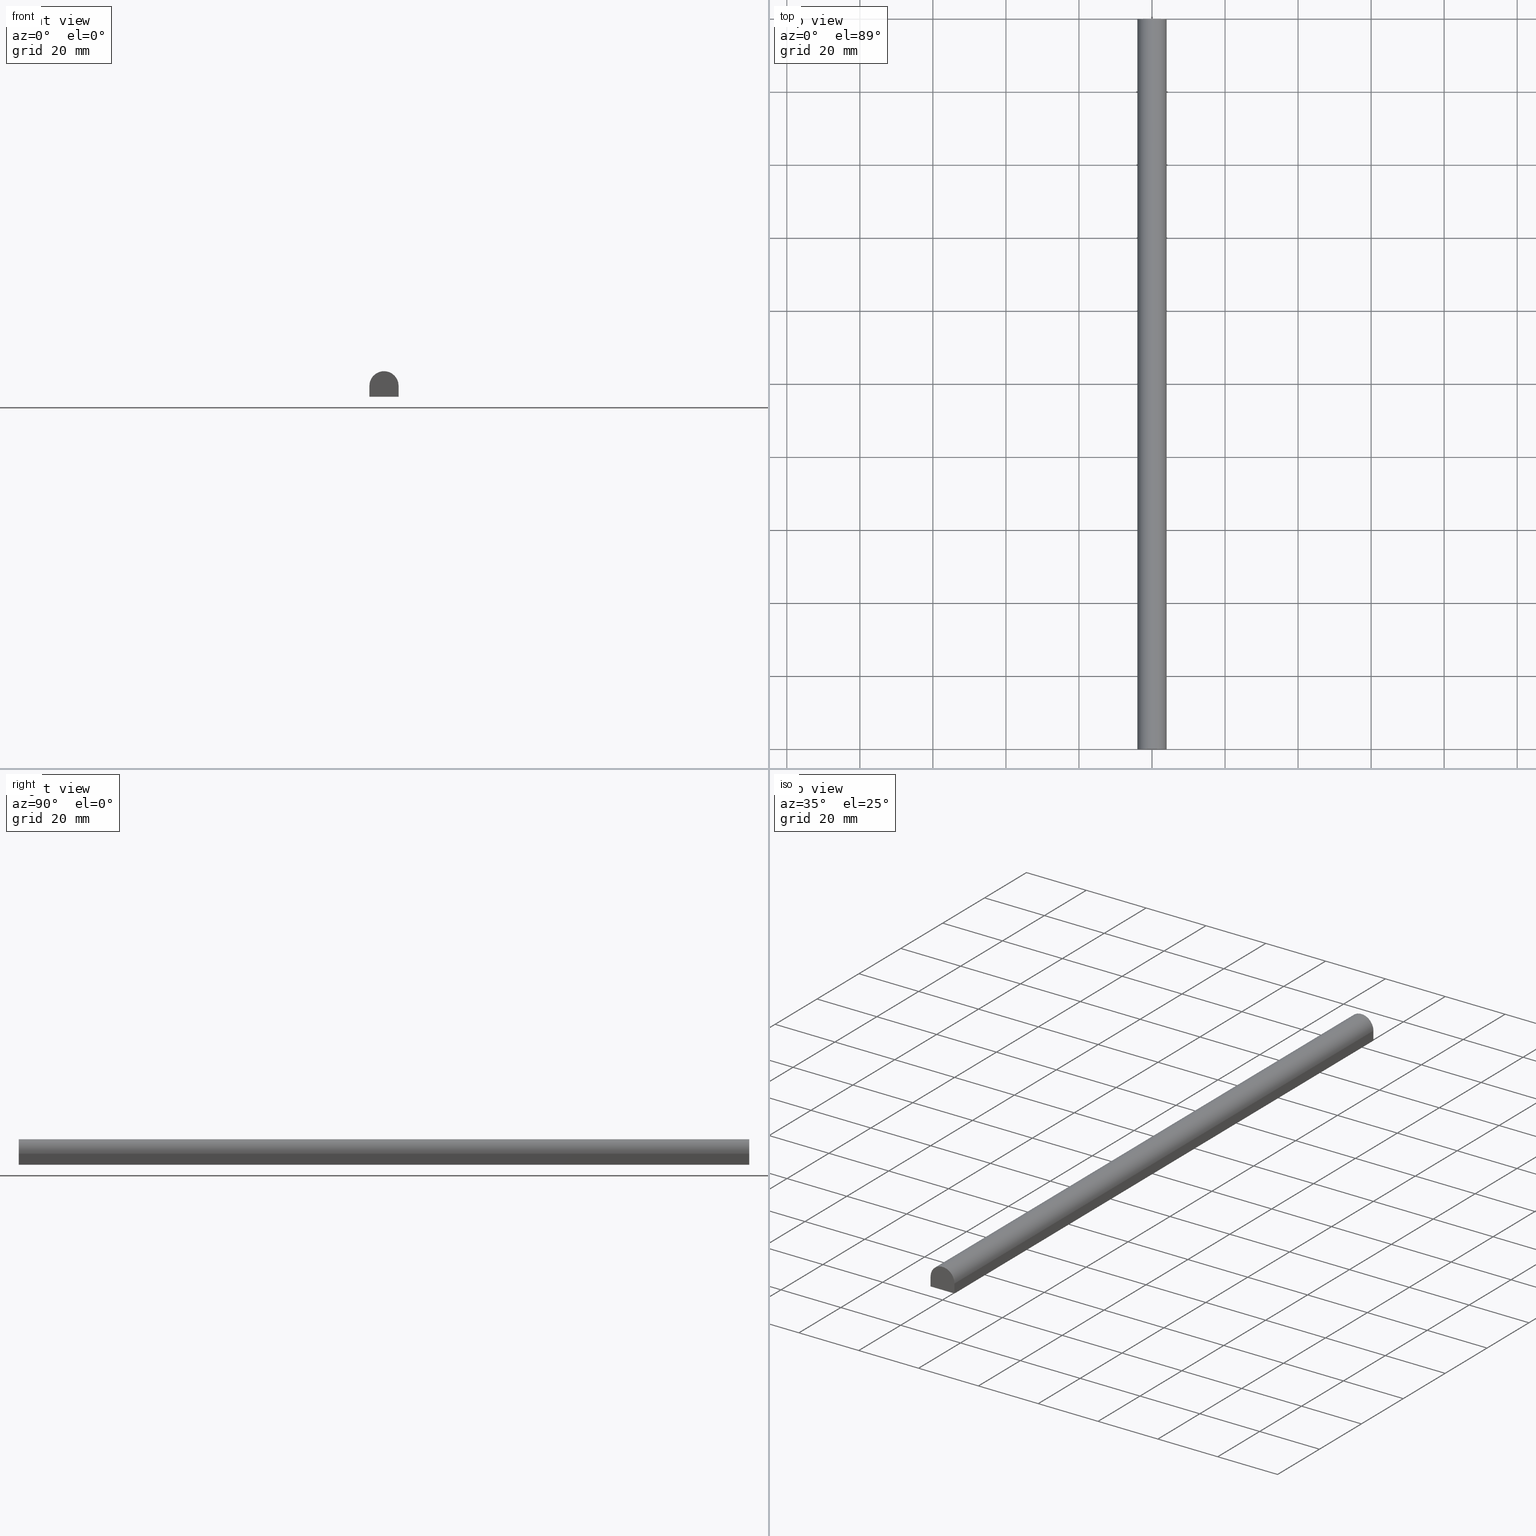
[diagram: canonical four-view strip — front | top / right | iso, engineering-drawing reading convention]
A machine part, canonical four-view strip (front | top / right | iso — engineering-drawing reading convention). The complete STEP part file that produces these views, byte-faithful:
ISO-10303-21;
HEADER;
FILE_DESCRIPTION (( 'STEP AP214' ),
    '1' );
FILE_NAME ('TM_341_2.STEP',
    '2016-05-10T02:31:54',
    ( '' ),
    ( '' ),
    'SwSTEP 2.0',
    'SolidWorks 2015',
    '' );
FILE_SCHEMA (( 'AUTOMOTIVE_DESIGN' ));
ENDSEC;

DATA;
#1 = AXIS2_PLACEMENT_3D ( 'NONE', #177, #96, #17 ) ;
#2 = PRODUCT_RELATED_PRODUCT_CATEGORY ( 'part', '', ( #161 ) ) ;
#3 =( NAMED_UNIT ( * ) PLANE_ANGLE_UNIT ( ) SI_UNIT ( $, .RADIAN. ) );
#4 = ORIENTED_EDGE ( 'NONE', *, *, #15, .F. ) ;
#5 = UNCERTAINTY_MEASURE_WITH_UNIT (LENGTH_MEASURE( 1.000000000000000100E-005 ), #59, 'distance_accuracy_value', 'NONE');
#6 = ADVANCED_FACE ( 'NONE', ( #80 ), #67, .T. ) ;
#7 = APPLICATION_PROTOCOL_DEFINITION ( 'draft international standard', 'automotive_design', 1998, #164 ) ;
#8 = EDGE_CURVE ( 'NONE', #192, #36, #125, .T. ) ;
#9 = FILL_AREA_STYLE_COLOUR ( '', #82 ) ;
#10 = DIRECTION ( 'NONE',  ( -0.0000000000000000000, -1.000000000000000000, -0.0000000000000000000 ) ) ;
#11 = AXIS2_PLACEMENT_3D ( 'NONE', #81, #92, #186 ) ;
#12 = PRODUCT_DEFINITION_SHAPE ( 'NONE', 'NONE',  #170 ) ;
#13 = ORIENTED_EDGE ( 'NONE', *, *, #15, .T. ) ;
#14 = STYLED_ITEM ( 'NONE', ( #56 ), #55 ) ;
#15 = EDGE_CURVE ( 'NONE', #58, #192, #37, .T. ) ;
#16 = ORIENTED_EDGE ( 'NONE', *, *, #8, .F. ) ;
#17 = DIRECTION ( 'NONE',  ( 0.0000000000000000000, 0.0000000000000000000, 1.000000000000000000 ) ) ;
#18 =( LENGTH_UNIT ( ) NAMED_UNIT ( * ) SI_UNIT ( .MILLI., .METRE. ) );
#19 = ADVANCED_FACE ( 'NONE', ( #180 ), #29, .T. ) ;
#20 = DIRECTION ( 'NONE',  ( -0.0000000000000000000, -0.0000000000000000000, 1.000000000000000000 ) ) ;
#21 = DIRECTION ( 'NONE',  ( 1.000000000000000000, 0.0000000000000000000, 0.0000000000000000000 ) ) ;
#22 = DIRECTION ( 'NONE',  ( -0.0000000000000000000, -0.0000000000000000000, -1.000000000000000000 ) ) ;
#23 = ITEM_DEFINED_TRANSFORMATION ( 'NONE', 'NONE', #129,  #35 ) ;
#24 =( GEOMETRIC_REPRESENTATION_CONTEXT ( 3 ) GLOBAL_UNCERTAINTY_ASSIGNED_CONTEXT ( ( #77 ) ) GLOBAL_UNIT_ASSIGNED_CONTEXT ( ( #138, #232, #130 ) ) REPRESENTATION_CONTEXT ( 'NONE', 'WORKASPACE' ) );
#25 =( REPRESENTATION_RELATIONSHIP ('NONE','NONE', #70, #68 ) REPRESENTATION_RELATIONSHIP_WITH_TRANSFORMATION ( #23 )SHAPE_REPRESENTATION_RELATIONSHIP( ) );
#26 = LINE ( 'NONE', #175, #182 ) ;
#27 = EDGE_LOOP ( 'NONE', ( #101, #95, #104, #181 ) ) ;
#28 = DIRECTION ( 'NONE',  ( 1.000000000000000000, 0.0000000000000000000, 0.0000000000000000000 ) ) ;
#29 = PLANE ( 'NONE',  #98 ) ;
#30 = VECTOR ( 'NONE', #172, 1000.000000000000000 ) ;
#31 =( NAMED_UNIT ( * ) SI_UNIT ( $, .STERADIAN. ) SOLID_ANGLE_UNIT ( ) );
#32 = DIRECTION ( 'NONE',  ( 0.0000000000000000000, 0.0000000000000000000, 1.000000000000000000 ) ) ;
#33 = ADVANCED_BREP_SHAPE_REPRESENTATION ( '', ( #55, #35 ), #24 ) ;
#34 = VECTOR ( 'NONE', #78, 1000.000000000000000 ) ;
#35 = AXIS2_PLACEMENT_3D ( 'NONE', #213, #154, #28 ) ;
#36 = VERTEX_POINT ( 'NONE', #173 ) ;
#37 = LINE ( 'NONE', #225, #34 ) ;
#38 = APPLICATION_CONTEXT ( 'automotive_design' ) ;
#39 = CARTESIAN_POINT ( 'NONE',  ( 4.000000000000000000, 200.0000000000000000, -0.5000000000000000000 ) ) ;
#40 = LINE ( 'NONE', #75, #137 ) ;
#41 = CARTESIAN_POINT ( 'NONE',  ( -4.000000000000000000, 200.0000000000000000, -3.500000000000000000 ) ) ;
#42 = VERTEX_POINT ( 'NONE', #128 ) ;
#43 = APPLICATION_PROTOCOL_DEFINITION ( 'draft international standard', 'automotive_design', 1998, #38 ) ;
#44 = PRODUCT_DEFINITION_CONTEXT ( 'detailed design', #164, 'design' ) ;
#45 = DIRECTION ( 'NONE',  ( 0.0000000000000000000, 0.0000000000000000000, -1.000000000000000000 ) ) ;
#46 = EDGE_LOOP ( 'NONE', ( #16, #4, #179, #239 ) ) ;
#47 = DIRECTION ( 'NONE',  ( -0.0000000000000000000, -1.000000000000000000, -0.0000000000000000000 ) ) ;
#48 = PLANE ( 'NONE',  #11 ) ;
#49 = PRODUCT_DEFINITION_CONTEXT ( 'detailed design', #132, 'design' ) ;
#50 = CARTESIAN_POINT ( 'NONE',  ( 4.000000000000000000, 1000.000000000000000, -0.5000000000000000000 ) ) ;
#51 = DIRECTION ( 'NONE',  ( 0.0000000000000000000, -1.000000000000000000, 0.0000000000000000000 ) ) ;
#52 = STYLED_ITEM ( 'NONE', ( #118 ), #33 ) ;
#53 = VECTOR ( 'NONE', #62, 1000.000000000000000 ) ;
#54 = VERTEX_POINT ( 'NONE', #57 ) ;
#55 = MANIFOLD_SOLID_BREP ( '���߰�1', #69 ) ;
#56 = PRESENTATION_STYLE_ASSIGNMENT (( #116 ) ) ;
#57 = CARTESIAN_POINT ( 'NONE',  ( -4.000000000000000000, 200.0000000000000000, -0.5000000000000000000 ) ) ;
#58 = VERTEX_POINT ( 'NONE', #41 ) ;
#59 =( LENGTH_UNIT ( ) NAMED_UNIT ( * ) SI_UNIT ( .MILLI., .METRE. ) );
#60 = ADVANCED_FACE ( 'NONE', ( #176 ), #169, .T. ) ;
#61 = ORIENTED_EDGE ( 'NONE', *, *, #142, .F. ) ;
#62 = DIRECTION ( 'NONE',  ( 0.0000000000000000000, -1.000000000000000000, 0.0000000000000000000 ) ) ;
#63 = PRESENTATION_LAYER_ASSIGNMENT (  '', '', ( #52 ) ) ;
#64 = DIRECTION ( 'NONE',  ( 0.0000000000000000000, 0.0000000000000000000, 1.000000000000000000 ) ) ;
#65 = DIRECTION ( 'NONE',  ( 0.0000000000000000000, 0.0000000000000000000, 1.000000000000000000 ) ) ;
#66 = CARTESIAN_POINT ( 'NONE',  ( 0.0000000000000000000, 0.0000000000000000000, 0.0000000000000000000 ) ) ;
#67 = PLANE ( 'NONE',  #1 ) ;
#68 = SHAPE_REPRESENTATION ( 'rubber foam', ( #35 ), #24 ) ;
#69 = CLOSED_SHELL ( 'NONE', ( #60, #162, #105, #6, #19, #218 ) ) ;
#70 = SHAPE_REPRESENTATION ( 'TM_341_2', ( #157, #129 ), #144 ) ;
#71 = DIRECTION ( 'NONE',  ( 1.000000000000000000, 0.0000000000000000000, 0.0000000000000000000 ) ) ;
#72 = LINE ( 'NONE', #136, #230 ) ;
#73 = MECHANICAL_DESIGN_GEOMETRIC_PRESENTATION_REPRESENTATION (  '', ( #52 ), #85 ) ;
#74 = ORIENTED_EDGE ( 'NONE', *, *, #93, .F. ) ;
#75 = CARTESIAN_POINT ( 'NONE',  ( -4.000000000000000000, 1000.000000000000000, -0.5000000000000000000 ) ) ;
#76 = APPLICATION_PROTOCOL_DEFINITION ( 'draft international standard', 'automotive_design', 1998, #132 ) ;
#77 = UNCERTAINTY_MEASURE_WITH_UNIT (LENGTH_MEASURE( 1.000000000000000100E-005 ), #138, 'distance_accuracy_value', 'NONE');
#78 = DIRECTION ( 'NONE',  ( 0.0000000000000000000, -1.000000000000000000, 0.0000000000000000000 ) ) ;
#79 = VECTOR ( 'NONE', #240, 1000.000000000000000 ) ;
#80 = FACE_OUTER_BOUND ( 'NONE', #134, .T. ) ;
#81 = CARTESIAN_POINT ( 'NONE',  ( 0.0000000000000000000, 0.0000000000000000000, 0.0000000000000000000 ) ) ;
#82 = COLOUR_RGB ( '',0.7921568627450980000, 0.8196078431372548800, 0.9333333333333333500 ) ;
#83 = SURFACE_SIDE_STYLE ('',( #216 ) ) ;
#84 = SHAPE_DEFINITION_REPRESENTATION ( #12, #68 ) ;
#85 =( GEOMETRIC_REPRESENTATION_CONTEXT ( 3 ) GLOBAL_UNCERTAINTY_ASSIGNED_CONTEXT ( ( #115 ) ) GLOBAL_UNIT_ASSIGNED_CONTEXT ( ( #18, #206, #140 ) ) REPRESENTATION_CONTEXT ( 'NONE', 'WORKASPACE' ) );
#86 = SHAPE_DEFINITION_REPRESENTATION ( #143, #70 ) ;
#87 = ORIENTED_EDGE ( 'NONE', *, *, #8, .T. ) ;
#88 = CARTESIAN_POINT ( 'NONE',  ( -4.000000000000000000, 1000.000000000000000, -3.500000000000000000 ) ) ;
#89 = ORIENTED_EDGE ( 'NONE', *, *, #159, .T. ) ;
#90 = CARTESIAN_POINT ( 'NONE',  ( 0.0000000000000000000, 0.0000000000000000000, 0.0000000000000000000 ) ) ;
#91 = DIRECTION ( 'NONE',  ( -1.000000000000000000, 0.0000000000000000000, 0.0000000000000000000 ) ) ;
#92 = DIRECTION ( 'NONE',  ( -0.0000000000000000000, 1.000000000000000000, 0.0000000000000000000 ) ) ;
#93 = EDGE_CURVE ( 'NONE', #210, #36, #121, .T. ) ;
#94 = DIRECTION ( 'NONE',  ( 1.000000000000000000, 0.0000000000000000000, 0.0000000000000000000 ) ) ;
#95 = ORIENTED_EDGE ( 'NONE', *, *, #236, .F. ) ;
#96 = DIRECTION ( 'NONE',  ( -1.000000000000000000, 0.0000000000000000000, 0.0000000000000000000 ) ) ;
#97 = UNCERTAINTY_MEASURE_WITH_UNIT (LENGTH_MEASURE( 1.000000000000000100E-005 ), #209, 'distance_accuracy_value', 'NONE');
#98 = AXIS2_PLACEMENT_3D ( 'NONE', #106, #112, #71 ) ;
#99 =( NAMED_UNIT ( * ) SI_UNIT ( $, .STERADIAN. ) SOLID_ANGLE_UNIT ( ) );
#100 = ORIENTED_EDGE ( 'NONE', *, *, #147, .T. ) ;
#101 = ORIENTED_EDGE ( 'NONE', *, *, #159, .F. ) ;
#102 = EDGE_CURVE ( 'NONE', #36, #103, #204, .T. ) ;
#103 = VERTEX_POINT ( 'NONE', #113 ) ;
#104 = ORIENTED_EDGE ( 'NONE', *, *, #237, .T. ) ;
#105 = ADVANCED_FACE ( 'NONE', ( #201 ), #214, .T. ) ;
#106 = CARTESIAN_POINT ( 'NONE',  ( 0.0000000000000000000, 200.0000000000000000, 0.0000000000000000000 ) ) ;
#107 = PRODUCT ( 'TM_341_2', 'TM_341_2', '', ( #203 ) ) ;
#108 = DIRECTION ( 'NONE',  ( 0.0000000000000000000, 0.0000000000000000000, -1.000000000000000000 ) ) ;
#109 = CARTESIAN_POINT ( 'NONE',  ( -4.000000000000000000, 0.0000000000000000000, -3.500000000000000000 ) ) ;
#110 = PRESENTATION_LAYER_ASSIGNMENT (  '', '', ( #14 ) ) ;
#111 = EDGE_CURVE ( 'NONE', #54, #42, #40, .T. ) ;
#112 = DIRECTION ( 'NONE',  ( -0.0000000000000000000, 1.000000000000000000, 0.0000000000000000000 ) ) ;
#113 = CARTESIAN_POINT ( 'NONE',  ( 4.000000000000000000, 0.0000000000000000000, -0.5000000000000000000 ) ) ;
#114 = CONTEXT_DEPENDENT_SHAPE_REPRESENTATION ( #25, #227 ) ;
#115 = UNCERTAINTY_MEASURE_WITH_UNIT (LENGTH_MEASURE( 1.000000000000000100E-005 ), #18, 'distance_accuracy_value', 'NONE');
#116 = SURFACE_STYLE_USAGE ( .BOTH. , #83 ) ;
#117 = PRODUCT_CONTEXT ( 'NONE', #124, 'mechanical' ) ;
#118 = PRESENTATION_STYLE_ASSIGNMENT (( #193 ) ) ;
#119 = AXIS2_PLACEMENT_3D ( 'NONE', #90, #165, #150 ) ;
#120 = ORIENTED_EDGE ( 'NONE', *, *, #237, .F. ) ;
#121 = LINE ( 'NONE', #238, #30 ) ;
#122 = MECHANICAL_DESIGN_GEOMETRIC_PRESENTATION_REPRESENTATION (  '', ( #14 ), #139 ) ;
#123 = FACE_OUTER_BOUND ( 'NONE', #199, .T. ) ;
#124 = APPLICATION_CONTEXT ( 'automotive_design' ) ;
#125 = LINE ( 'NONE', #207, #229 ) ;
#126 = EDGE_CURVE ( 'NONE', #58, #210, #127, .T. ) ;
#127 = LINE ( 'NONE', #219, #79 ) ;
#128 = CARTESIAN_POINT ( 'NONE',  ( -4.000000000000000000, 0.0000000000000000000, -0.5000000000000000000 ) ) ;
#129 = AXIS2_PLACEMENT_3D ( 'NONE', #66, #32, #21 ) ;
#130 =( NAMED_UNIT ( * ) SI_UNIT ( $, .STERADIAN. ) SOLID_ANGLE_UNIT ( ) );
#131 = LINE ( 'NONE', #50, #53 ) ;
#132 = APPLICATION_CONTEXT ( 'automotive_design' ) ;
#133 = VECTOR ( 'NONE', #20, 1000.000000000000000 ) ;
#134 = EDGE_LOOP ( 'NONE', ( #215, #202, #152, #13 ) ) ;
#135 = FILL_AREA_STYLE ('',( #168 ) ) ;
#136 = CARTESIAN_POINT ( 'NONE',  ( -4.000000000000000000, 200.0000000000000000, 0.0000000000000000000 ) ) ;
#137 = VECTOR ( 'NONE', #231, 1000.000000000000000 ) ;
#138 =( LENGTH_UNIT ( ) NAMED_UNIT ( * ) SI_UNIT ( .MILLI., .METRE. ) );
#139 =( GEOMETRIC_REPRESENTATION_CONTEXT ( 3 ) GLOBAL_UNCERTAINTY_ASSIGNED_CONTEXT ( ( #5 ) ) GLOBAL_UNIT_ASSIGNED_CONTEXT ( ( #59, #190, #31 ) ) REPRESENTATION_CONTEXT ( 'NONE', 'WORKASPACE' ) );
#140 =( NAMED_UNIT ( * ) SI_UNIT ( $, .STERADIAN. ) SOLID_ANGLE_UNIT ( ) );
#141 = VERTEX_POINT ( 'NONE', #39 ) ;
#142 = EDGE_CURVE ( 'NONE', #54, #58, #72, .T. ) ;
#143 = PRODUCT_DEFINITION_SHAPE ( 'NONE', 'NONE',  #195 ) ;
#144 =( GEOMETRIC_REPRESENTATION_CONTEXT ( 3 ) GLOBAL_UNCERTAINTY_ASSIGNED_CONTEXT ( ( #97 ) ) GLOBAL_UNIT_ASSIGNED_CONTEXT ( ( #209, #3, #99 ) ) REPRESENTATION_CONTEXT ( 'NONE', 'WORKASPACE' ) );
#145 = CIRCLE ( 'NONE', #235, 4.000000000000000000 ) ;
#146 = ORIENTED_EDGE ( 'NONE', *, *, #236, .T. ) ;
#147 = EDGE_CURVE ( 'NONE', #210, #141, #148, .T. ) ;
#148 = LINE ( 'NONE', #151, #133 ) ;
#149 = ORIENTED_EDGE ( 'NONE', *, *, #160, .T. ) ;
#150 = DIRECTION ( 'NONE',  ( 1.000000000000000000, 0.0000000000000000000, 0.0000000000000000000 ) ) ;
#151 = CARTESIAN_POINT ( 'NONE',  ( 4.000000000000000000, 200.0000000000000000, 0.0000000000000000000 ) ) ;
#152 = ORIENTED_EDGE ( 'NONE', *, *, #142, .T. ) ;
#153 = DIRECTION ( 'NONE',  ( 0.0000000000000000000, 0.0000000000000000000, 1.000000000000000000 ) ) ;
#154 = DIRECTION ( 'NONE',  ( 0.0000000000000000000, 0.0000000000000000000, 1.000000000000000000 ) ) ;
#155 = SURFACE_SIDE_STYLE ('',( #221 ) ) ;
#156 = SHAPE_REPRESENTATION_RELATIONSHIP ( 'NONE' , 'NONE' ,  #68, #33 ) ;
#157 = AXIS2_PLACEMENT_3D ( 'NONE', #211, #65, #174 ) ;
#158 = ORIENTED_EDGE ( 'NONE', *, *, #126, .F. ) ;
#159 = EDGE_CURVE ( 'NONE', #103, #42, #198, .T. ) ;
#160 = EDGE_CURVE ( 'NONE', #42, #192, #26, .T. ) ;
#161 = PRODUCT ( 'rubber foam', 'rubber foam', '', ( #117 ) ) ;
#162 = ADVANCED_FACE ( 'NONE', ( #123 ), #166, .T. ) ;
#163 = CARTESIAN_POINT ( 'NONE',  ( 4.000000000000000000, 1000.000000000000000, -3.500000000000000000 ) ) ;
#164 = APPLICATION_CONTEXT ( 'automotive_design' ) ;
#165 = DIRECTION ( 'NONE',  ( 0.0000000000000000000, 0.0000000000000000000, 1.000000000000000000 ) ) ;
#166 = PLANE ( 'NONE',  #222 ) ;
#167 = COLOUR_RGB ( '',0.7921568627450980000, 0.8196078431372548800, 0.9333333333333333500 ) ;
#168 = FILL_AREA_STYLE_COLOUR ( '', #167 ) ;
#169 = PLANE ( 'NONE',  #178 ) ;
#170 = PRODUCT_DEFINITION ( 'UNKNOWN', '', #233, #49 ) ;
#171 = ORIENTED_EDGE ( 'NONE', *, *, #102, .T. ) ;
#172 = DIRECTION ( 'NONE',  ( 0.0000000000000000000, -1.000000000000000000, 0.0000000000000000000 ) ) ;
#173 = CARTESIAN_POINT ( 'NONE',  ( 4.000000000000000000, 0.0000000000000000000, -3.500000000000000000 ) ) ;
#174 = DIRECTION ( 'NONE',  ( 1.000000000000000000, 0.0000000000000000000, 0.0000000000000000000 ) ) ;
#175 = CARTESIAN_POINT ( 'NONE',  ( -4.000000000000000000, 0.0000000000000000000, 0.0000000000000000000 ) ) ;
#176 = FACE_OUTER_BOUND ( 'NONE', #46, .T. ) ;
#177 = CARTESIAN_POINT ( 'NONE',  ( -4.000000000000000000, 1000.000000000000000, -0.5000000000000000000 ) ) ;
#178 = AXIS2_PLACEMENT_3D ( 'NONE', #88, #45, #91 ) ;
#179 = ORIENTED_EDGE ( 'NONE', *, *, #126, .T. ) ;
#180 = FACE_OUTER_BOUND ( 'NONE', #234, .T. ) ;
#181 = ORIENTED_EDGE ( 'NONE', *, *, #111, .T. ) ;
#182 = VECTOR ( 'NONE', #22, 1000.000000000000000 ) ;
#183 = DIRECTION ( 'NONE',  ( -0.0000000000000000000, -0.0000000000000000000, 1.000000000000000000 ) ) ;
#184 = EDGE_LOOP ( 'NONE', ( #87, #171, #89, #149 ) ) ;
#185 = DIRECTION ( 'NONE',  ( 1.000000000000000000, -0.0000000000000000000, -0.0000000000000000000 ) ) ;
#186 = DIRECTION ( 'NONE',  ( 1.000000000000000000, 0.0000000000000000000, 0.0000000000000000000 ) ) ;
#187 = VECTOR ( 'NONE', #183, 1000.000000000000000 ) ;
#188 = AXIS2_PLACEMENT_3D ( 'NONE', #228, #47, #64 ) ;
#189 = CARTESIAN_POINT ( 'NONE',  ( 4.000000000000000000, 0.0000000000000000000, 0.0000000000000000000 ) ) ;
#190 =( NAMED_UNIT ( * ) PLANE_ANGLE_UNIT ( ) SI_UNIT ( $, .RADIAN. ) );
#191 = CARTESIAN_POINT ( 'NONE',  ( 0.0000000000000000000, 1000.000000000000000, -0.5000000000000000000 ) ) ;
#192 = VERTEX_POINT ( 'NONE', #109 ) ;
#193 = SURFACE_STYLE_USAGE ( .BOTH. , #155 ) ;
#194 = DIRECTION ( 'NONE',  ( 0.0000000000000000000, 0.0000000000000000000, -1.000000000000000000 ) ) ;
#195 = PRODUCT_DEFINITION ( 'UNKNOWN', '', #208, #44 ) ;
#196 = FACE_OUTER_BOUND ( 'NONE', #184, .T. ) ;
#197 = ORIENTED_EDGE ( 'NONE', *, *, #102, .F. ) ;
#198 = CIRCLE ( 'NONE', #188, 4.000000000000000000 ) ;
#199 = EDGE_LOOP ( 'NONE', ( #197, #74, #100, #146 ) ) ;
#200 = AXIS2_PLACEMENT_3D ( 'NONE', #191, #51, #194 ) ;
#201 = FACE_OUTER_BOUND ( 'NONE', #27, .T. ) ;
#202 = ORIENTED_EDGE ( 'NONE', *, *, #111, .F. ) ;
#203 = PRODUCT_CONTEXT ( 'NONE', #38, 'mechanical' ) ;
#204 = LINE ( 'NONE', #189, #187 ) ;
#205 = CARTESIAN_POINT ( 'NONE',  ( 0.0000000000000000000, 200.0000000000000000, -0.5000000000000000000 ) ) ;
#206 =( NAMED_UNIT ( * ) PLANE_ANGLE_UNIT ( ) SI_UNIT ( $, .RADIAN. ) );
#207 = CARTESIAN_POINT ( 'NONE',  ( 0.0000000000000000000, 0.0000000000000000000, -3.500000000000000000 ) ) ;
#208 = PRODUCT_DEFINITION_FORMATION_WITH_SPECIFIED_SOURCE ( 'ANY', '', #107, .NOT_KNOWN. ) ;
#209 =( LENGTH_UNIT ( ) NAMED_UNIT ( * ) SI_UNIT ( .MILLI., .METRE. ) );
#210 = VERTEX_POINT ( 'NONE', #223 ) ;
#211 = CARTESIAN_POINT ( 'NONE',  ( 0.0000000000000000000, 0.0000000000000000000, 0.0000000000000000000 ) ) ;
#212 = FILL_AREA_STYLE ('',( #9 ) ) ;
#213 = CARTESIAN_POINT ( 'NONE',  ( 0.0000000000000000000, 0.0000000000000000000, 0.0000000000000000000 ) ) ;
#214 = CYLINDRICAL_SURFACE ( 'NONE', #200, 4.000000000000000000 ) ;
#215 = ORIENTED_EDGE ( 'NONE', *, *, #160, .F. ) ;
#216 = SURFACE_STYLE_FILL_AREA ( #212 ) ;
#217 = PRODUCT_RELATED_PRODUCT_CATEGORY ( 'part', '', ( #107 ) ) ;
#218 = ADVANCED_FACE ( 'NONE', ( #196 ), #48, .F. ) ;
#219 = CARTESIAN_POINT ( 'NONE',  ( 0.0000000000000000000, 200.0000000000000000, -3.500000000000000000 ) ) ;
#220 = DIRECTION ( 'NONE',  ( -0.0000000000000000000, -0.0000000000000000000, -1.000000000000000000 ) ) ;
#221 = SURFACE_STYLE_FILL_AREA ( #135 ) ;
#222 = AXIS2_PLACEMENT_3D ( 'NONE', #163, #94, #108 ) ;
#223 = CARTESIAN_POINT ( 'NONE',  ( 4.000000000000000000, 200.0000000000000000, -3.500000000000000000 ) ) ;
#224 = ORIENTED_EDGE ( 'NONE', *, *, #147, .F. ) ;
#225 = CARTESIAN_POINT ( 'NONE',  ( -4.000000000000000000, 1000.000000000000000, -3.500000000000000000 ) ) ;
#226 = APPLICATION_PROTOCOL_DEFINITION ( 'draft international standard', 'automotive_design', 1998, #124 ) ;
#227 = PRODUCT_DEFINITION_SHAPE ( 'NONE', 'NONE',  #241 ) ;
#228 = CARTESIAN_POINT ( 'NONE',  ( 0.0000000000000000000, 0.0000000000000000000, -0.5000000000000000000 ) ) ;
#229 = VECTOR ( 'NONE', #185, 1000.000000000000000 ) ;
#230 = VECTOR ( 'NONE', #220, 1000.000000000000000 ) ;
#231 = DIRECTION ( 'NONE',  ( 0.0000000000000000000, -1.000000000000000000, 0.0000000000000000000 ) ) ;
#232 =( NAMED_UNIT ( * ) PLANE_ANGLE_UNIT ( ) SI_UNIT ( $, .RADIAN. ) );
#233 = PRODUCT_DEFINITION_FORMATION_WITH_SPECIFIED_SOURCE ( 'ANY', '', #161, .NOT_KNOWN. ) ;
#234 = EDGE_LOOP ( 'NONE', ( #158, #61, #120, #224 ) ) ;
#235 = AXIS2_PLACEMENT_3D ( 'NONE', #205, #10, #153 ) ;
#236 = EDGE_CURVE ( 'NONE', #141, #103, #131, .T. ) ;
#237 = EDGE_CURVE ( 'NONE', #141, #54, #145, .T. ) ;
#238 = CARTESIAN_POINT ( 'NONE',  ( 4.000000000000000000, 1000.000000000000000, -3.500000000000000000 ) ) ;
#239 = ORIENTED_EDGE ( 'NONE', *, *, #93, .T. ) ;
#240 = DIRECTION ( 'NONE',  ( 1.000000000000000000, -0.0000000000000000000, -0.0000000000000000000 ) ) ;
#241 = NEXT_ASSEMBLY_USAGE_OCCURRENCE ( 'NAUO1', ' ', ' ', #195, #170, $ ) ;
ENDSEC;
END-ISO-10303-21;
